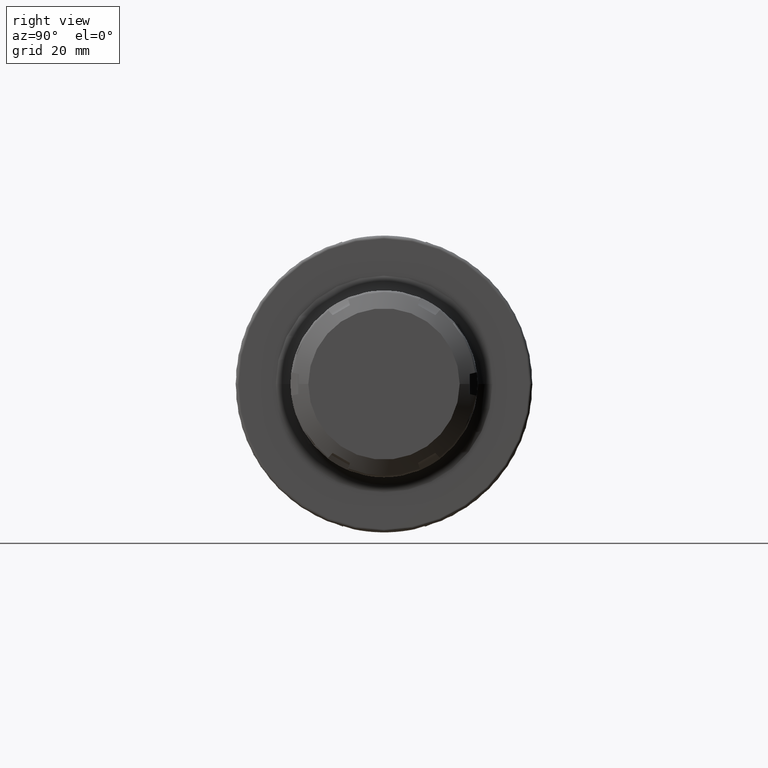
[diagram: clean part render]
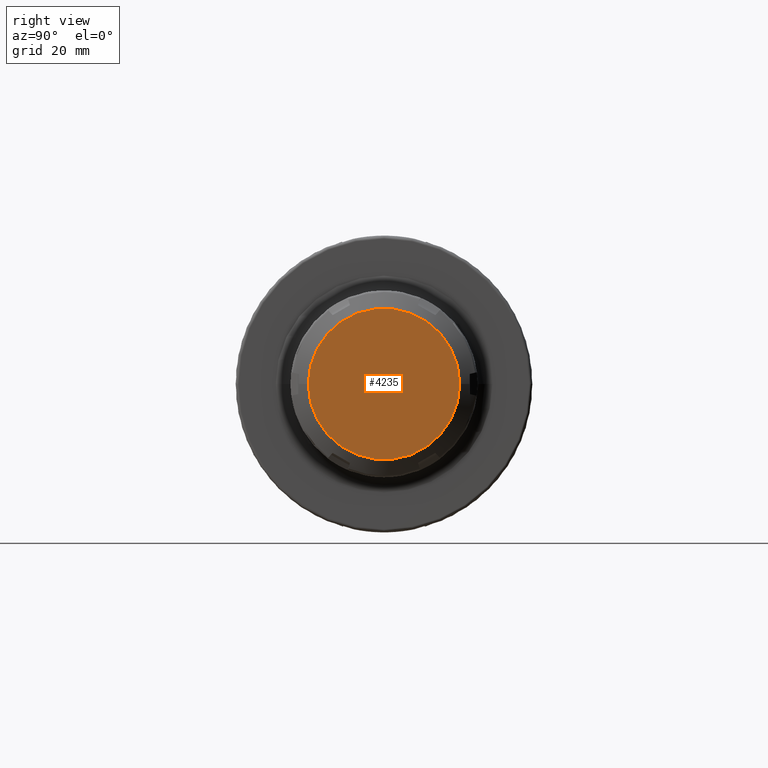
[diagram: same view with one face highlighted and labeled with its STEP entity id]
A machine part, right view. The second image highlights one B-rep face of the part: STEP entity #4235.
In plain terms, the highlighted planar face has unit normal (1, 0, 0).
Its self-contained STEP definition (entity closure, byte-faithful):
#3469=CARTESIAN_POINT('',(2.55E1,0.E0,0.E0));
#3470=DIRECTION('',(-1.E0,0.E0,0.E0));
#3471=DIRECTION('',(0.E0,1.E0,0.E0));
#3472=AXIS2_PLACEMENT_3D('',#3469,#3470,#3471);
#3829=CARTESIAN_POINT('',(2.55E1,0.E0,0.E0));
#3830=DIRECTION('',(1.E0,0.E0,0.E0));
#3831=DIRECTION('',(0.E0,1.E0,0.E0));
#3832=AXIS2_PLACEMENT_3D('',#3829,#3830,#3831);
#4112=CARTESIAN_POINT('',(2.55E1,2.55E1,0.E0));
#4113=CARTESIAN_POINT('',(2.55E1,-2.55E1,0.E0));
#4114=VERTEX_POINT('',#4112);
#4115=VERTEX_POINT('',#4113);
#4224=CARTESIAN_POINT('',(2.55E1,0.E0,0.E0));
#4225=DIRECTION('',(1.E0,0.E0,0.E0));
#4226=DIRECTION('',(0.E0,-1.E0,0.E0));
#4227=AXIS2_PLACEMENT_3D('',#4224,#4225,#4226);
#4228=PLANE('',#4227);
#4230=ORIENTED_EDGE('',*,*,#4229,.T.);
#4232=ORIENTED_EDGE('',*,*,#4231,.F.);
#4233=EDGE_LOOP('',(#4230,#4232));
#4234=FACE_OUTER_BOUND('',#4233,.F.);
#4235=ADVANCED_FACE('',(#4234),#4228,.T.);
#3473=CIRCLE('',#3472,2.55E1);
#3833=CIRCLE('',#3832,2.55E1);
#4229=EDGE_CURVE('',#4114,#4115,#3473,.T.);
#4231=EDGE_CURVE('',#4114,#4115,#3833,.T.);